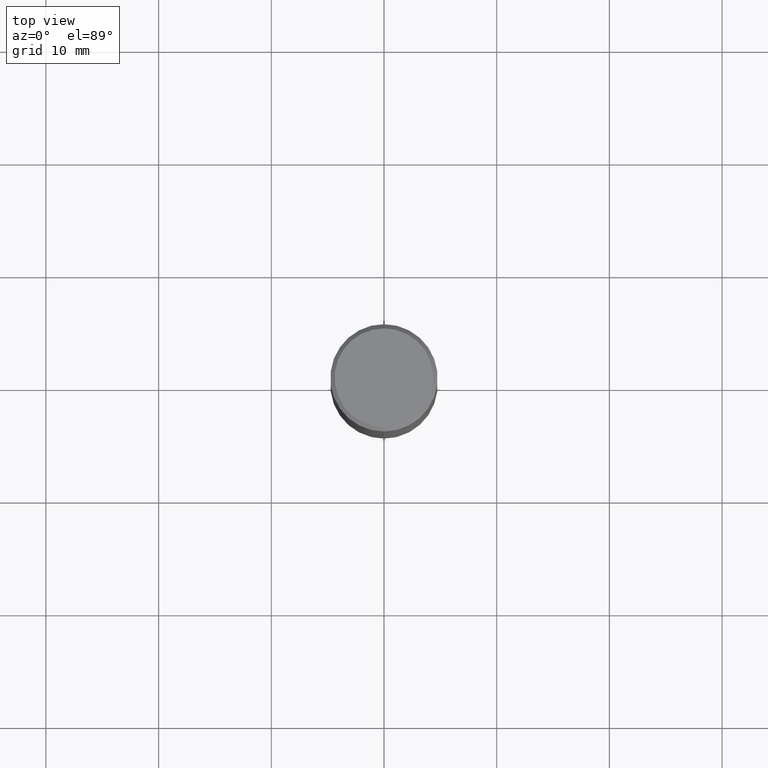
[diagram: clean part render]
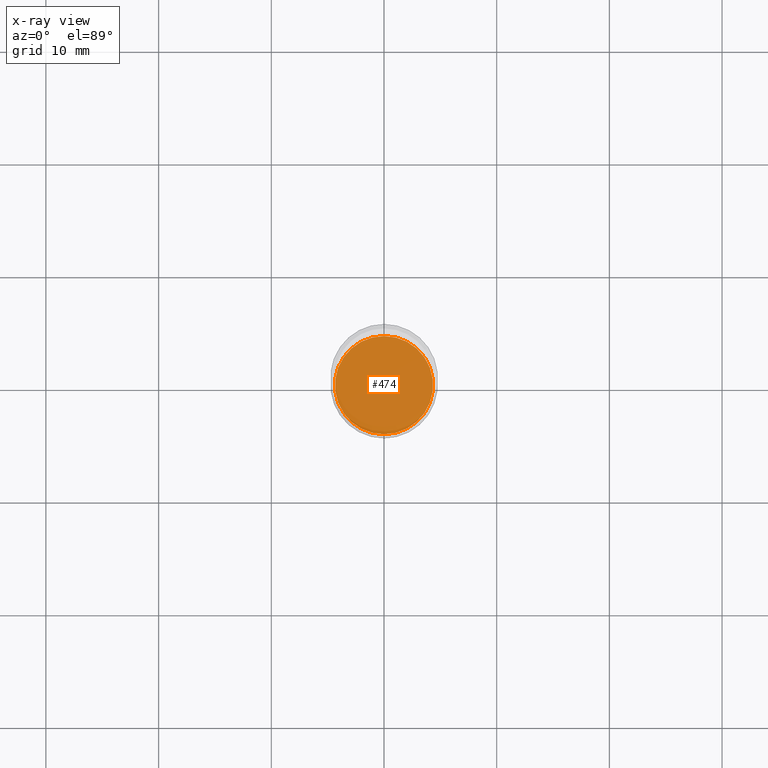
[diagram: x-ray — body ghosted, one internal face saturated and labeled with its STEP entity id]
A machine part, top view, then the same camera in x-ray: the body is ghosted and one INTERNAL B-rep face — a face not visible from any outside direction — is saturated and labeled: STEP entity #474.
In plain terms, the highlighted planar face has unit normal (-0, 0, 1).
Its self-contained STEP definition (entity closure, byte-faithful):
#12 = DIRECTION ( 'NONE',  ( -6.982962677686266711E-15, -1.000000000000000000, 3.187687273820611169E-15 ) ) ;
#18 = CARTESIAN_POINT ( 'NONE',  ( 3.668210961314156973E-29, -5.237210906907301972E-15, -1.500000000000000222 ) ) ;
#19 = EDGE_CURVE ( 'NONE', #229, #131, #429, .T. ) ;
#60 = FACE_OUTER_BOUND ( 'NONE', #86, .T. ) ;
#61 = DIRECTION ( 'NONE',  ( -2.445473974209437701E-29, 3.491473937938200789E-15, 1.000000000000000000 ) ) ;
#86 = EDGE_LOOP ( 'NONE', ( #219, #359 ) ) ;
#109 = CIRCLE ( 'NONE', #360, 0.1713999999999999690 ) ;
#118 = EDGE_CURVE ( 'NONE', #131, #229, #109, .T. ) ;
#131 = VERTEX_POINT ( 'NONE', #480 ) ;
#184 = DIRECTION ( 'NONE',  ( -6.982962677686265922E-15, -1.000000000000000000, 3.491473937938200394E-15 ) ) ;
#192 = CARTESIAN_POINT ( 'NONE',  ( 3.668210961314156973E-29, -5.237210906907301972E-15, -1.500000000000000222 ) ) ;
#219 = ORIENTED_EDGE ( 'NONE', *, *, #118, .F. ) ;
#222 = CARTESIAN_POINT ( 'NONE',  ( 1.219646605932247841E-15, 0.1713999999999947510, -1.500000000000000666 ) ) ;
#229 = VERTEX_POINT ( 'NONE', #222 ) ;
#266 = DIRECTION ( 'NONE',  ( -2.445473974209437701E-29, 3.491473937938200394E-15, 1.000000000000000000 ) ) ;
#295 = CARTESIAN_POINT ( 'NONE',  ( 3.668210961314156973E-29, -5.237210906907301972E-15, -1.500000000000000222 ) ) ;
#300 = AXIS2_PLACEMENT_3D ( 'NONE', #18, #266, #184 ) ;
#333 = DIRECTION ( 'NONE',  ( -2.445473974209437701E-29, 3.491473937938200789E-15, 1.000000000000000000 ) ) ;
#343 = DIRECTION ( 'NONE',  ( -6.982962677686266711E-15, -1.000000000000000000, 3.187687273820611169E-15 ) ) ;
#359 = ORIENTED_EDGE ( 'NONE', *, *, #19, .F. ) ;
#360 = AXIS2_PLACEMENT_3D ( 'NONE', #295, #61, #12 ) ;
#373 = PLANE ( 'NONE',  #300 ) ;
#429 = CIRCLE ( 'NONE', #433, 0.1713999999999999690 ) ;
#433 = AXIS2_PLACEMENT_3D ( 'NONE', #192, #333, #343 ) ;
#474 = ADVANCED_FACE ( 'NONE', ( #60 ), #373, .F. ) ;
#480 = CARTESIAN_POINT ( 'NONE',  ( -1.196879802955389158E-15, -0.1714000000000052149, -1.499999999999999556 ) ) ;